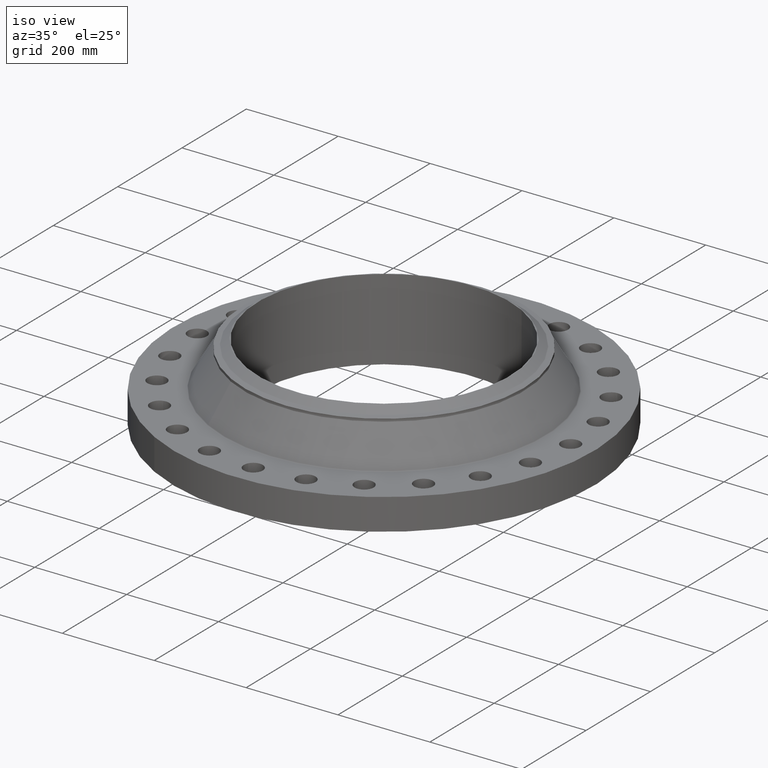
[diagram: clean part render]
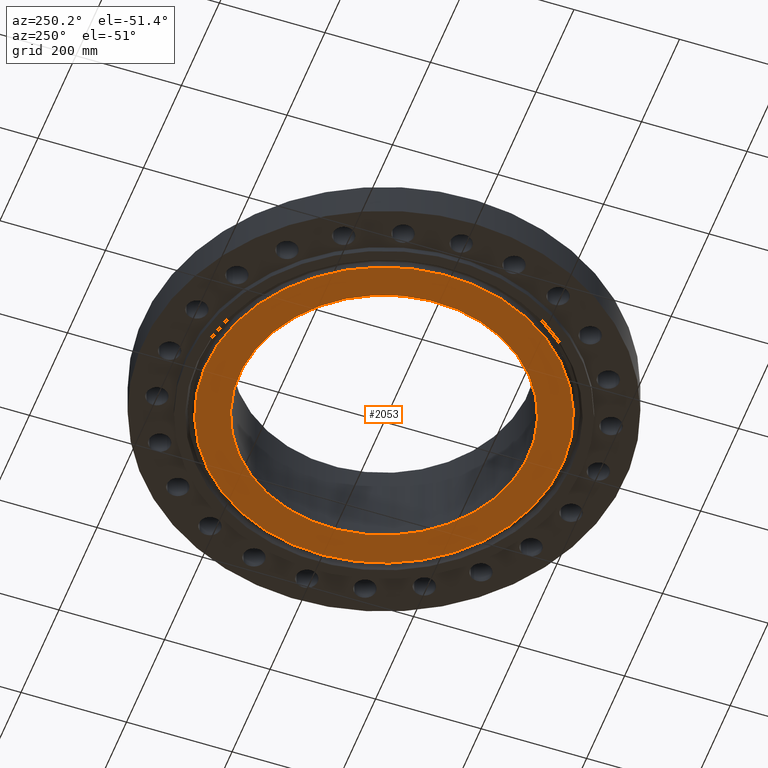
[diagram: tour spotlight — one face highlighted and labeled with its STEP entity id]
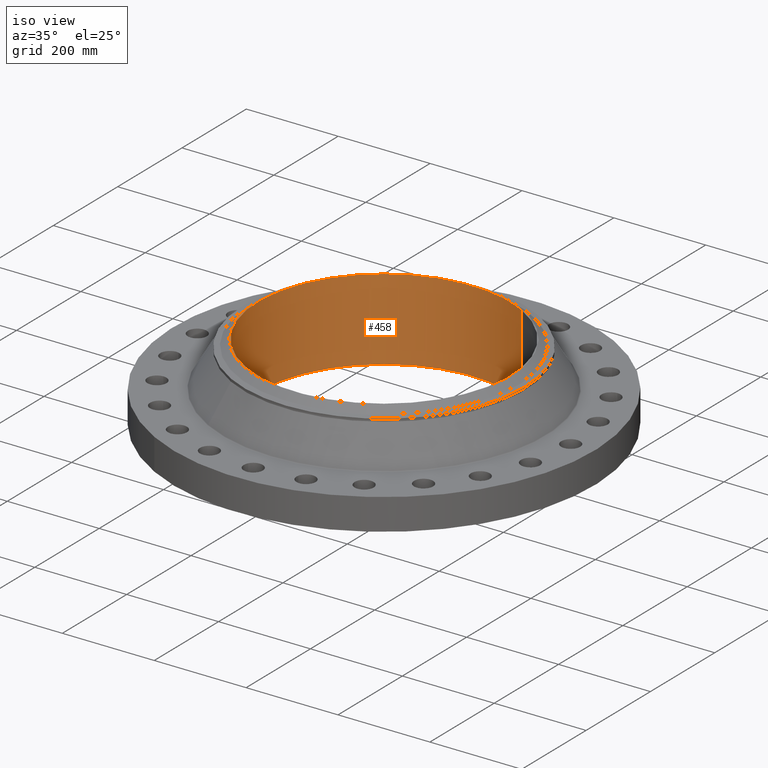
[diagram: tour spotlight — one face highlighted and labeled with its STEP entity id]
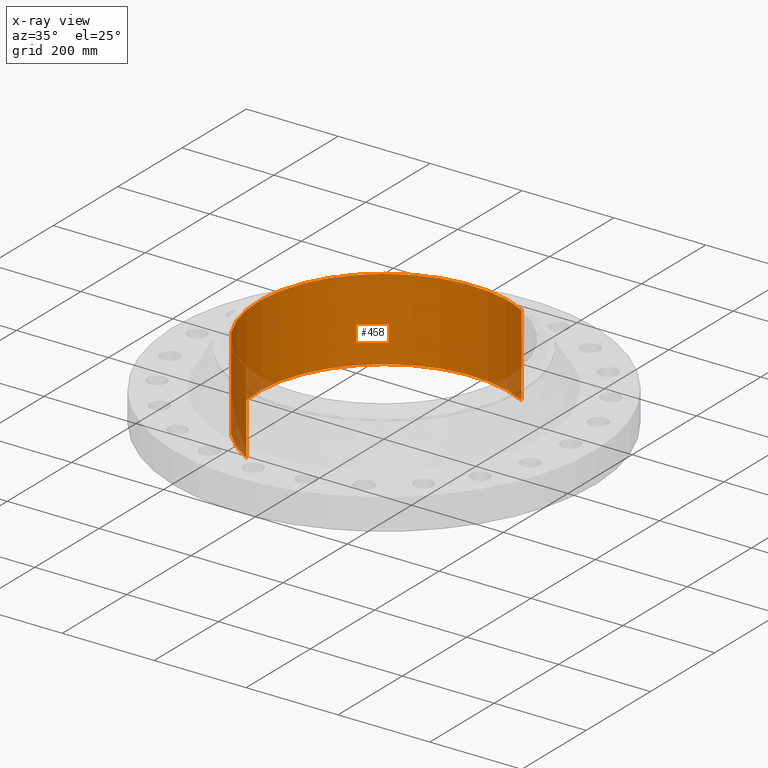
[diagram: x-ray of the same camera — body ghosted, this tour face saturated]
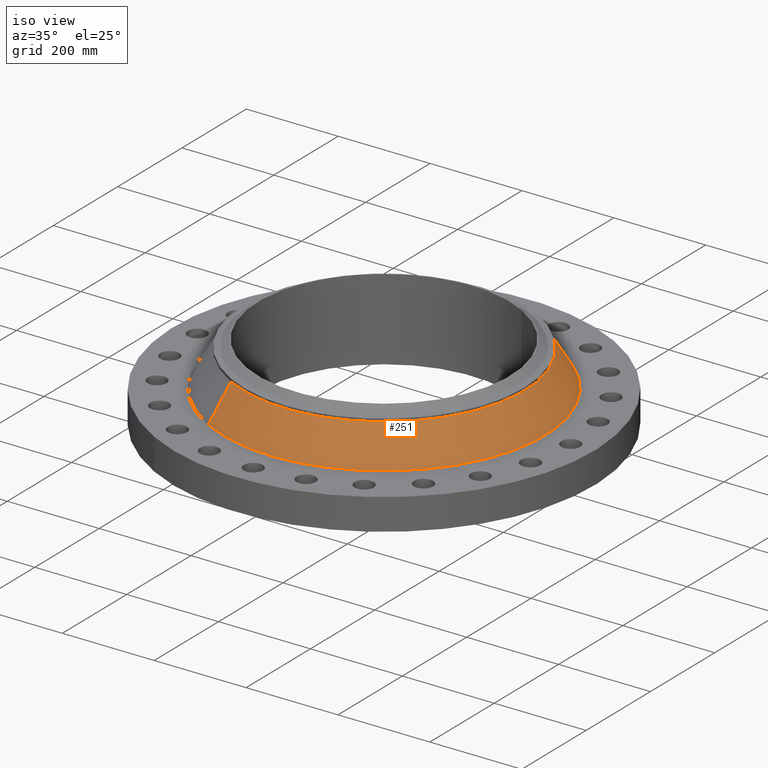
[diagram: tour spotlight — one face highlighted and labeled with its STEP entity id]
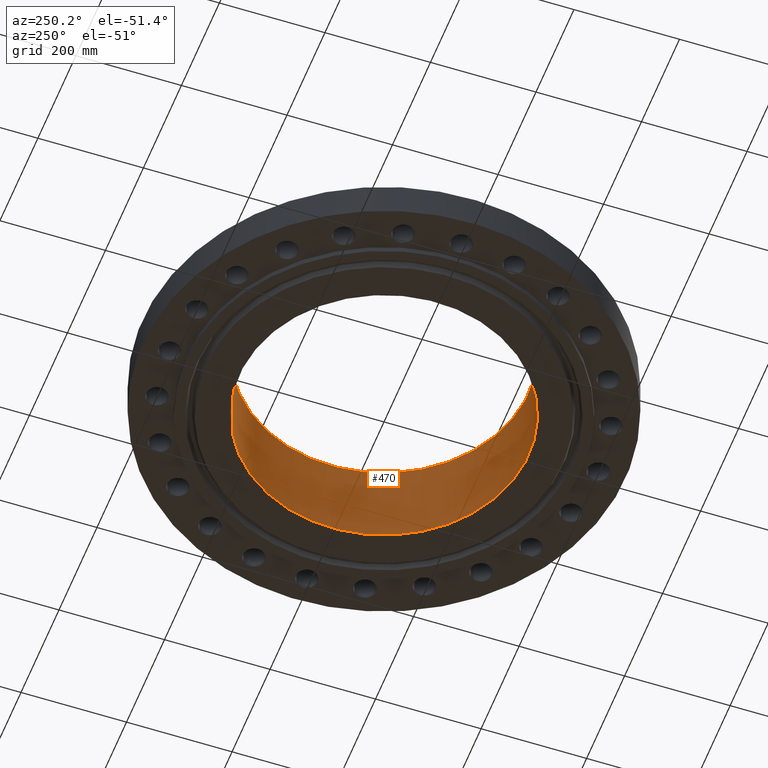
[diagram: tour spotlight — one face highlighted and labeled with its STEP entity id]
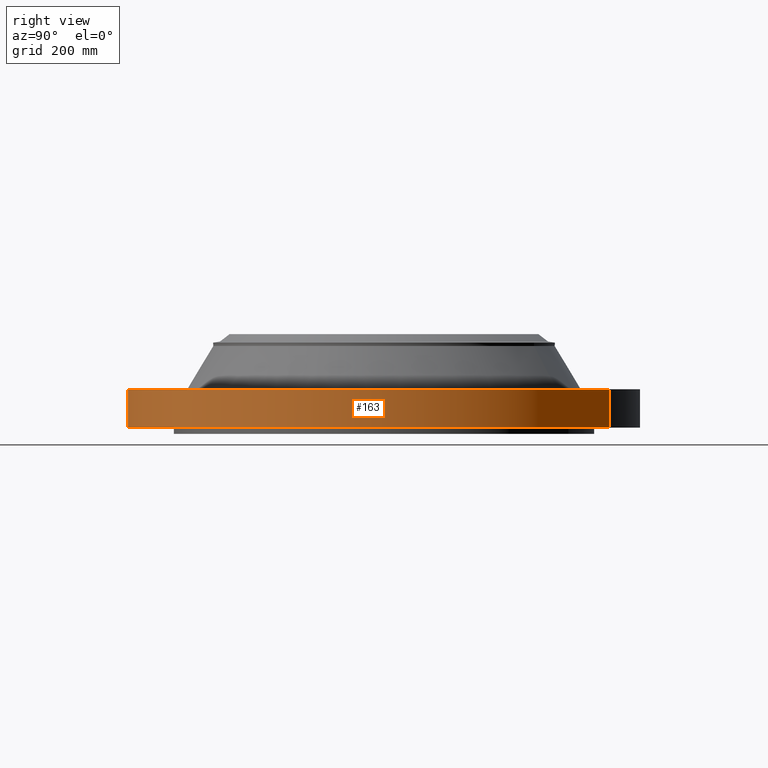
[diagram: tour spotlight — one face highlighted and labeled with its STEP entity id]
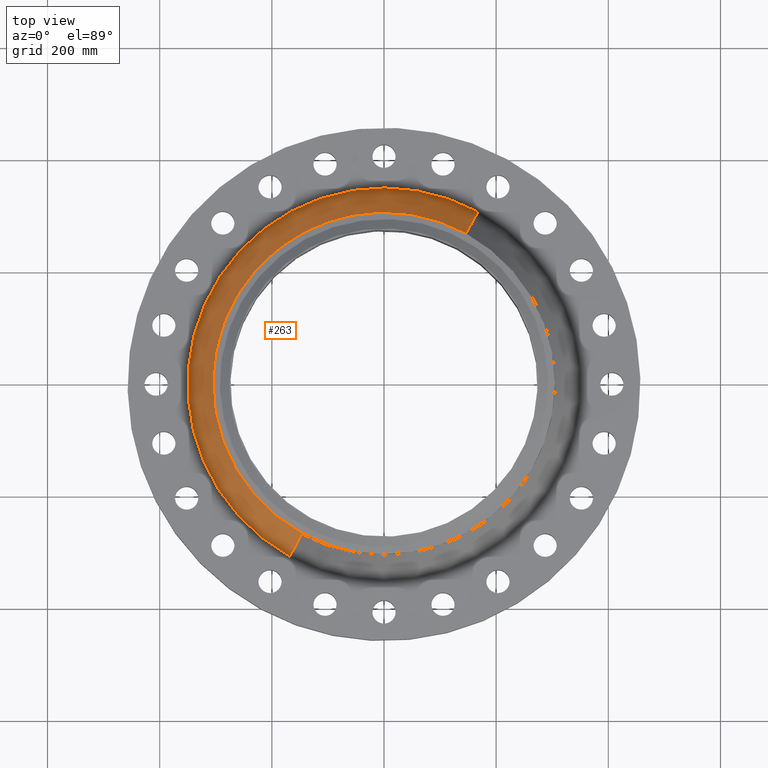
[diagram: tour spotlight — one face highlighted and labeled with its STEP entity id]
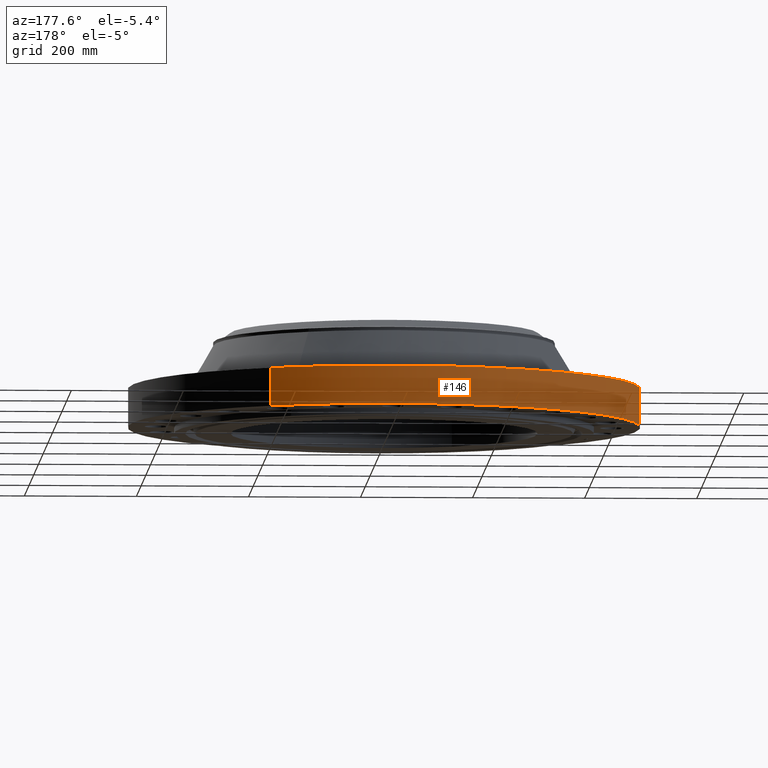
[diagram: tour spotlight — one face highlighted and labeled with its STEP entity id]
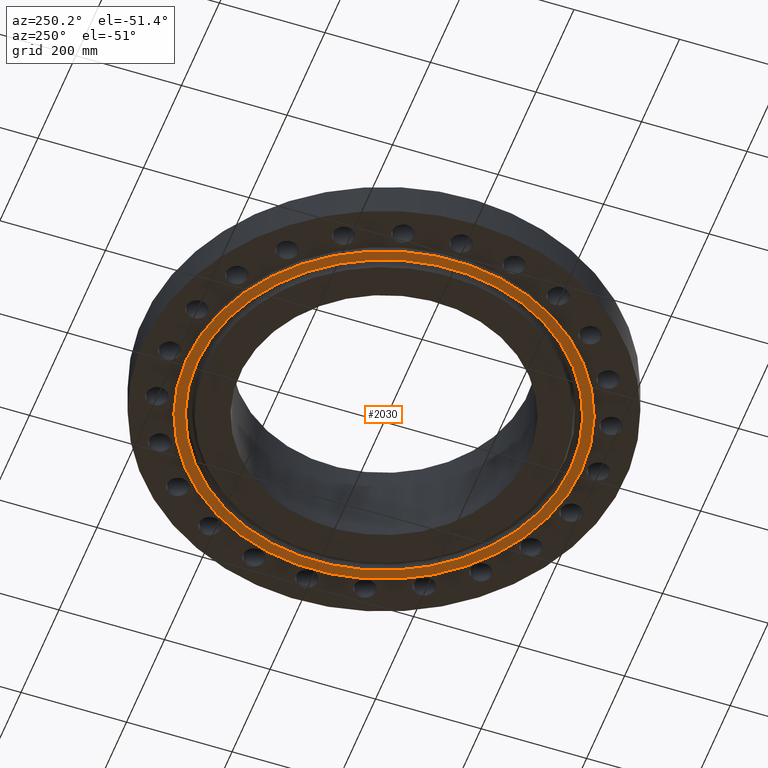
[diagram: tour spotlight — one face highlighted and labeled with its STEP entity id]
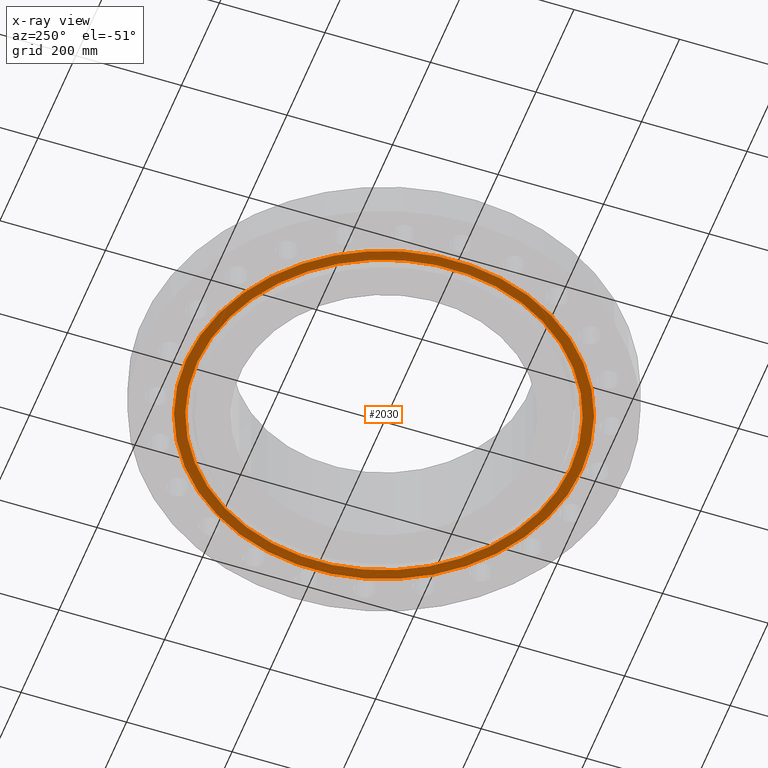
[diagram: x-ray of the same camera — body ghosted, this tour face saturated]
A machine part: a face-by-face anatomy tour. The part has 465 B-rep faces; the first image is the clean iso view, then the 8 largest visible faces are spotlighted one at a time (largest first), each with its STEP entity span.

Face 1 — auxiliary view, entity #2053. In plain terms, the highlighted planar face has unit normal (0, 0, -1).
Definition (entity closure, byte-faithful):
#442=AXIS2_PLACEMENT_3D('Circle Axis2P3D',#440,#441,$) ;
#461=AXIS2_PLACEMENT_3D('Circle Axis2P3D',#459,#460,$) ;
#2006=AXIS2_PLACEMENT_3D('Plane Axis2P3D',#2003,#2004,#2005) ;
#2033=AXIS2_PLACEMENT_3D('Circle Axis2P3D',#2031,#2032,$) ;
#2042=AXIS2_PLACEMENT_3D('Circle Axis2P3D',#2040,#2041,$) ;
#437=CARTESIAN_POINT('Vertex',(-5.16868673171,-9.46121759978,-0.438000000002)) ;
#440=CARTESIAN_POINT('Axis2P3D Location',(0.,0.,-0.438000000002)) ;
#444=CARTESIAN_POINT('Vertex',(5.16868673171,9.46121759978,-0.438000000002)) ;
#459=CARTESIAN_POINT('Axis2P3D Location',(0.,0.,-0.438000000002)) ;
#2003=CARTESIAN_POINT('Axis2P3D Location',(0.,10.781,-0.438000000002)) ;
#2031=CARTESIAN_POINT('Axis2P3D Location',(3.35689481461E-015,-2.23792987641E-015,-0.438000000002)) ;
#2035=CARTESIAN_POINT('Vertex',(-6.37492138685,11.6692153255,-0.438000000002)) ;
#2037=CARTESIAN_POINT('Vertex',(6.37492138685,-11.6692153255,-0.438000000002)) ;
#2040=CARTESIAN_POINT('Axis2P3D Location',(-3.35689481461E-015,2.23792987641E-015,-0.438000000002)) ;
#441=DIRECTION('Axis2P3D Direction',(0.,0.,-0.0393700787402)) ;
#460=DIRECTION('Axis2P3D Direction',(0.,0.,-0.0393700787402)) ;
#2004=DIRECTION('Axis2P3D Direction',(0.,0.,-0.0393700787402)) ;
#2005=DIRECTION('Axis2P3D XDirection',(0.0393700787402,0.,0.)) ;
#2032=DIRECTION('Axis2P3D Direction',(0.,0.,-0.0393700787402)) ;
#2041=DIRECTION('Axis2P3D Direction',(0.,0.,-0.0393700787402)) ;
#2046=ORIENTED_EDGE('',*,*,#2039,.T.) ;
#2047=ORIENTED_EDGE('',*,*,#2044,.T.) ;
#2050=ORIENTED_EDGE('',*,*,#463,.F.) ;
#2051=ORIENTED_EDGE('',*,*,#446,.F.) ;
#2052=FACE_BOUND('',#2049,.T.) ;
#2053=ADVANCED_FACE('PartBody',(#2048,#2052),#2007,.T.) ;
#443=CIRCLE('generated circle',#442,10.781) ;
#462=CIRCLE('generated circle',#461,10.781) ;
#2034=CIRCLE('generated circle',#2033,13.2970000001) ;
#2043=CIRCLE('generated circle',#2042,13.2970000001) ;
#446=EDGE_CURVE('',#438,#445,#443,.T.) ;
#463=EDGE_CURVE('',#445,#438,#462,.T.) ;
#2039=EDGE_CURVE('',#2036,#2038,#2034,.T.) ;
#2044=EDGE_CURVE('',#2038,#2036,#2043,.T.) ;
#2045=EDGE_LOOP('',(#2046,#2047)) ;
#2049=EDGE_LOOP('',(#2050,#2051)) ;
#2048=FACE_OUTER_BOUND('',#2045,.T.) ;
#2007=PLANE('',#2006) ;
#438=VERTEX_POINT('',#437) ;
#445=VERTEX_POINT('',#444) ;
#2036=VERTEX_POINT('',#2035) ;
#2038=VERTEX_POINT('',#2037) ;

Face 2 — iso view, entity #458. An x-ray twin of the same camera follows (body ghosted, this face saturated) — the face is partly hidden behind the body. In plain terms, the highlighted cylindrical surface (partial cylindrical patch) has radius 273.837 mm, axis along (0, 0, -1).
Definition (entity closure, byte-faithful):
#380=AXIS2_PLACEMENT_3D('Circle Axis2P3D',#378,#379,$) ;
#431=AXIS2_PLACEMENT_3D('Cylinder Axis2P3D',#428,#429,#430) ;
#442=AXIS2_PLACEMENT_3D('Circle Axis2P3D',#440,#441,$) ;
#378=CARTESIAN_POINT('Axis2P3D Location',(0.,0.,6.56000000003)) ;
#382=CARTESIAN_POINT('Vertex',(-5.16868673171,-9.46121759978,6.56000000003)) ;
#384=CARTESIAN_POINT('Vertex',(5.16868673171,9.46121759978,6.56000000003)) ;
#428=CARTESIAN_POINT('Axis2P3D Location',(0.,0.,3.06100000001)) ;
#433=CARTESIAN_POINT('Line Origine',(-5.16868673171,-9.46121759978,3.06100000001)) ;
#437=CARTESIAN_POINT('Vertex',(-5.16868673171,-9.46121759978,-0.438000000002)) ;
#440=CARTESIAN_POINT('Axis2P3D Location',(0.,0.,-0.438000000002)) ;
#444=CARTESIAN_POINT('Vertex',(5.16868673171,9.46121759978,-0.438000000002)) ;
#447=CARTESIAN_POINT('Line Origine',(5.16868673171,9.46121759978,3.06100000001)) ;
#379=DIRECTION('Axis2P3D Direction',(0.,0.,-0.0393700787402)) ;
#429=DIRECTION('Axis2P3D Direction',(0.,0.,-0.0393700787402)) ;
#430=DIRECTION('Axis2P3D XDirection',(0.0188750212049,0.0345504945626,0.)) ;
#434=DIRECTION('Vector Direction',(0.,0.,-0.0393700787402)) ;
#441=DIRECTION('Axis2P3D Direction',(0.,0.,-0.0393700787402)) ;
#448=DIRECTION('Vector Direction',(0.,0.,-0.0393700787402)) ;
#435=VECTOR('Line Direction',#434,0.0393700787402) ;
#449=VECTOR('Line Direction',#448,0.0393700787402) ;
#453=ORIENTED_EDGE('',*,*,#386,.F.) ;
#454=ORIENTED_EDGE('',*,*,#439,.T.) ;
#455=ORIENTED_EDGE('',*,*,#446,.T.) ;
#456=ORIENTED_EDGE('',*,*,#451,.F.) ;
#458=ADVANCED_FACE('PartBody',(#457),#432,.F.) ;
#381=CIRCLE('generated circle',#380,10.781) ;
#443=CIRCLE('generated circle',#442,10.781) ;
#432=CYLINDRICAL_SURFACE('generated cylinder',#431,10.781) ;
#386=EDGE_CURVE('',#383,#385,#381,.T.) ;
#439=EDGE_CURVE('',#383,#438,#436,.T.) ;
#446=EDGE_CURVE('',#438,#445,#443,.T.) ;
#451=EDGE_CURVE('',#385,#445,#450,.T.) ;
#452=EDGE_LOOP('',(#453,#454,#455,#456)) ;
#457=FACE_OUTER_BOUND('',#452,.T.) ;
#436=LINE('Line',#433,#435) ;
#450=LINE('Line',#447,#449) ;
#383=VERTEX_POINT('',#382) ;
#385=VERTEX_POINT('',#384) ;
#438=VERTEX_POINT('',#437) ;
#445=VERTEX_POINT('',#444) ;

Face 3 — iso view, entity #251. In plain terms, the highlighted conical surface has half-angle 30.793 deg.
Definition (entity closure, byte-faithful):
#187=AXIS2_PLACEMENT_3D('Circle Axis2P3D',#185,#186,$) ;
#224=AXIS2_PLACEMENT_3D('Cone Axis2P3D',#221,#222,#223) ;
#235=AXIS2_PLACEMENT_3D('Circle Axis2P3D',#233,#234,$) ;
#182=CARTESIAN_POINT('Vertex',(6.60413308278,12.0887845206,2.74856779196)) ;
#185=CARTESIAN_POINT('Axis2P3D Location',(0.,0.,2.74856779196)) ;
#189=CARTESIAN_POINT('Vertex',(-6.60413308278,-12.0887845206,2.74856779196)) ;
#221=CARTESIAN_POINT('Axis2P3D Location',(0.,0.,5.72716976636)) ;
#226=CARTESIAN_POINT('Line Origine',(6.17861977303,11.3098876317,4.23786877916)) ;
#230=CARTESIAN_POINT('Vertex',(5.75310646327,10.5309907427,5.72716976636)) ;
#233=CARTESIAN_POINT('Axis2P3D Location',(0.,0.,5.72716976636)) ;
#237=CARTESIAN_POINT('Vertex',(-5.75310646327,-10.5309907427,5.72716976636)) ;
#240=CARTESIAN_POINT('Line Origine',(-6.17861977303,-11.3098876317,4.23786877916)) ;
#186=DIRECTION('Axis2P3D Direction',(0.,0.,-0.0393700787402)) ;
#222=DIRECTION('Axis2P3D Direction',(0.,0.,-0.0393700787402)) ;
#223=DIRECTION('Axis2P3D XDirection',(-0.0188750212049,-0.0345504945626,0.)) ;
#227=DIRECTION('Vector Direction',(0.00966278524701,0.0176876097522,-0.0338198483517)) ;
#234=DIRECTION('Axis2P3D Direction',(0.,0.,-0.0393700787402)) ;
#241=DIRECTION('Vector Direction',(-0.00966278524701,-0.0176876097522,-0.0338198483517)) ;
#228=VECTOR('Line Direction',#227,0.0393700787402) ;
#242=VECTOR('Line Direction',#241,0.0393700787402) ;
#246=ORIENTED_EDGE('',*,*,#191,.F.) ;
#247=ORIENTED_EDGE('',*,*,#232,.T.) ;
#248=ORIENTED_EDGE('',*,*,#239,.T.) ;
#249=ORIENTED_EDGE('',*,*,#244,.F.) ;
#251=ADVANCED_FACE('PartBody',(#250),#225,.T.) ;
#188=CIRCLE('generated circle',#187,13.7750965499) ;
#236=CIRCLE('generated circle',#235,12.) ;
#225=CONICAL_SURFACE('Cone',#224,12.,0.537435916281) ;
#191=EDGE_CURVE('',#183,#190,#188,.T.) ;
#232=EDGE_CURVE('',#183,#231,#229,.F.) ;
#239=EDGE_CURVE('',#231,#238,#236,.T.) ;
#244=EDGE_CURVE('',#190,#238,#243,.F.) ;
#245=EDGE_LOOP('',(#246,#247,#248,#249)) ;
#250=FACE_OUTER_BOUND('',#245,.T.) ;
#229=LINE('Line',#226,#228) ;
#243=LINE('Line',#240,#242) ;
#183=VERTEX_POINT('',#182) ;
#190=VERTEX_POINT('',#189) ;
#231=VERTEX_POINT('',#230) ;
#238=VERTEX_POINT('',#237) ;

Face 4 — auxiliary view, entity #470. In plain terms, the highlighted cylindrical surface (partial cylindrical patch) has radius 273.837 mm, axis along (0, 0, -1).
Definition (entity closure, byte-faithful):
#389=AXIS2_PLACEMENT_3D('Circle Axis2P3D',#387,#388,$) ;
#431=AXIS2_PLACEMENT_3D('Cylinder Axis2P3D',#428,#429,#430) ;
#461=AXIS2_PLACEMENT_3D('Circle Axis2P3D',#459,#460,$) ;
#382=CARTESIAN_POINT('Vertex',(-5.16868673171,-9.46121759978,6.56000000003)) ;
#384=CARTESIAN_POINT('Vertex',(5.16868673171,9.46121759978,6.56000000003)) ;
#387=CARTESIAN_POINT('Axis2P3D Location',(0.,0.,6.56000000003)) ;
#428=CARTESIAN_POINT('Axis2P3D Location',(0.,0.,3.06100000001)) ;
#433=CARTESIAN_POINT('Line Origine',(-5.16868673171,-9.46121759978,3.06100000001)) ;
#437=CARTESIAN_POINT('Vertex',(-5.16868673171,-9.46121759978,-0.438000000002)) ;
#444=CARTESIAN_POINT('Vertex',(5.16868673171,9.46121759978,-0.438000000002)) ;
#447=CARTESIAN_POINT('Line Origine',(5.16868673171,9.46121759978,3.06100000001)) ;
#459=CARTESIAN_POINT('Axis2P3D Location',(0.,0.,-0.438000000002)) ;
#388=DIRECTION('Axis2P3D Direction',(0.,0.,-0.0393700787402)) ;
#429=DIRECTION('Axis2P3D Direction',(0.,0.,-0.0393700787402)) ;
#430=DIRECTION('Axis2P3D XDirection',(0.0188750212049,0.0345504945626,0.)) ;
#434=DIRECTION('Vector Direction',(0.,0.,-0.0393700787402)) ;
#448=DIRECTION('Vector Direction',(0.,0.,-0.0393700787402)) ;
#460=DIRECTION('Axis2P3D Direction',(0.,0.,-0.0393700787402)) ;
#435=VECTOR('Line Direction',#434,0.0393700787402) ;
#449=VECTOR('Line Direction',#448,0.0393700787402) ;
#465=ORIENTED_EDGE('',*,*,#391,.F.) ;
#466=ORIENTED_EDGE('',*,*,#451,.T.) ;
#467=ORIENTED_EDGE('',*,*,#463,.T.) ;
#468=ORIENTED_EDGE('',*,*,#439,.F.) ;
#470=ADVANCED_FACE('PartBody',(#469),#432,.F.) ;
#390=CIRCLE('generated circle',#389,10.781) ;
#462=CIRCLE('generated circle',#461,10.781) ;
#432=CYLINDRICAL_SURFACE('generated cylinder',#431,10.781) ;
#391=EDGE_CURVE('',#385,#383,#390,.T.) ;
#439=EDGE_CURVE('',#383,#438,#436,.T.) ;
#451=EDGE_CURVE('',#385,#445,#450,.T.) ;
#463=EDGE_CURVE('',#445,#438,#462,.T.) ;
#464=EDGE_LOOP('',(#465,#466,#467,#468)) ;
#469=FACE_OUTER_BOUND('',#464,.T.) ;
#436=LINE('Line',#433,#435) ;
#450=LINE('Line',#447,#449) ;
#383=VERTEX_POINT('',#382) ;
#385=VERTEX_POINT('',#384) ;
#438=VERTEX_POINT('',#437) ;
#445=VERTEX_POINT('',#444) ;

Face 5 — right view, entity #163. In plain terms, the highlighted cylindrical surface (partial cylindrical patch) has radius 457.2 mm, axis along (0, 0, -1).
Definition (entity closure, byte-faithful):
#110=AXIS2_PLACEMENT_3D('Cylinder Axis2P3D',#107,#108,#109) ;
#149=AXIS2_PLACEMENT_3D('Circle Axis2P3D',#147,#148,$) ;
#154=AXIS2_PLACEMENT_3D('Circle Axis2P3D',#152,#153,$) ;
#107=CARTESIAN_POINT('Axis2P3D Location',(0.,0.,3.06100000001)) ;
#116=CARTESIAN_POINT('Vertex',(-8.62965969491,-15.7964861141,2.23792987641E-015)) ;
#118=CARTESIAN_POINT('Vertex',(8.62965969491,15.7964861141,2.23792987641E-015)) ;
#121=CARTESIAN_POINT('Line Origine',(-8.62965969491,-15.7964861141,1.34500000001)) ;
#125=CARTESIAN_POINT('Vertex',(-8.62965969491,-15.7964861141,2.69000000001)) ;
#132=CARTESIAN_POINT('Vertex',(8.62965969491,15.7964861141,2.69000000001)) ;
#135=CARTESIAN_POINT('Line Origine',(8.62965969491,15.7964861141,1.34500000001)) ;
#147=CARTESIAN_POINT('Axis2P3D Location',(0.,0.,2.23792987641E-015)) ;
#152=CARTESIAN_POINT('Axis2P3D Location',(0.,0.,2.69000000001)) ;
#108=DIRECTION('Axis2P3D Direction',(0.,0.,-0.0393700787402)) ;
#109=DIRECTION('Axis2P3D XDirection',(0.0188750212049,0.0345504945626,0.)) ;
#122=DIRECTION('Vector Direction',(0.,0.,-0.0393700787402)) ;
#136=DIRECTION('Vector Direction',(0.,0.,-0.0393700787402)) ;
#148=DIRECTION('Axis2P3D Direction',(0.,0.,-0.0393700787402)) ;
#153=DIRECTION('Axis2P3D Direction',(0.,0.,-0.0393700787402)) ;
#123=VECTOR('Line Direction',#122,0.0393700787402) ;
#137=VECTOR('Line Direction',#136,0.0393700787402) ;
#158=ORIENTED_EDGE('',*,*,#151,.F.) ;
#159=ORIENTED_EDGE('',*,*,#139,.T.) ;
#160=ORIENTED_EDGE('',*,*,#156,.T.) ;
#161=ORIENTED_EDGE('',*,*,#127,.F.) ;
#163=ADVANCED_FACE('PartBody',(#162),#111,.T.) ;
#150=CIRCLE('generated circle',#149,18.0000000001) ;
#155=CIRCLE('generated circle',#154,18.0000000001) ;
#111=CYLINDRICAL_SURFACE('generated cylinder',#110,18.0000000001) ;
#127=EDGE_CURVE('',#117,#126,#124,.F.) ;
#139=EDGE_CURVE('',#119,#133,#138,.F.) ;
#151=EDGE_CURVE('',#119,#117,#150,.T.) ;
#156=EDGE_CURVE('',#133,#126,#155,.T.) ;
#157=EDGE_LOOP('',(#158,#159,#160,#161)) ;
#162=FACE_OUTER_BOUND('',#157,.T.) ;
#124=LINE('Line',#121,#123) ;
#138=LINE('Line',#135,#137) ;
#117=VERTEX_POINT('',#116) ;
#119=VERTEX_POINT('',#118) ;
#126=VERTEX_POINT('',#125) ;
#133=VERTEX_POINT('',#132) ;

Face 6 — top view, entity #263. In plain terms, the highlighted conical surface has half-angle 30.793 deg.
Definition (entity closure, byte-faithful):
#211=AXIS2_PLACEMENT_3D('Circle Axis2P3D',#209,#210,$) ;
#224=AXIS2_PLACEMENT_3D('Cone Axis2P3D',#221,#222,#223) ;
#254=AXIS2_PLACEMENT_3D('Circle Axis2P3D',#252,#253,$) ;
#182=CARTESIAN_POINT('Vertex',(6.60413308278,12.0887845206,2.74856779196)) ;
#189=CARTESIAN_POINT('Vertex',(-6.60413308278,-12.0887845206,2.74856779196)) ;
#209=CARTESIAN_POINT('Axis2P3D Location',(0.,0.,2.74856779196)) ;
#221=CARTESIAN_POINT('Axis2P3D Location',(0.,0.,5.72716976636)) ;
#226=CARTESIAN_POINT('Line Origine',(6.17861977303,11.3098876317,4.23786877916)) ;
#230=CARTESIAN_POINT('Vertex',(5.75310646327,10.5309907427,5.72716976636)) ;
#237=CARTESIAN_POINT('Vertex',(-5.75310646327,-10.5309907427,5.72716976636)) ;
#240=CARTESIAN_POINT('Line Origine',(-6.17861977303,-11.3098876317,4.23786877916)) ;
#252=CARTESIAN_POINT('Axis2P3D Location',(0.,0.,5.72716976636)) ;
#210=DIRECTION('Axis2P3D Direction',(0.,0.,-0.0393700787402)) ;
#222=DIRECTION('Axis2P3D Direction',(0.,0.,-0.0393700787402)) ;
#223=DIRECTION('Axis2P3D XDirection',(-0.0188750212049,-0.0345504945626,0.)) ;
#227=DIRECTION('Vector Direction',(0.00966278524701,0.0176876097522,-0.0338198483517)) ;
#241=DIRECTION('Vector Direction',(-0.00966278524701,-0.0176876097522,-0.0338198483517)) ;
#253=DIRECTION('Axis2P3D Direction',(0.,0.,-0.0393700787402)) ;
#228=VECTOR('Line Direction',#227,0.0393700787402) ;
#242=VECTOR('Line Direction',#241,0.0393700787402) ;
#258=ORIENTED_EDGE('',*,*,#213,.F.) ;
#259=ORIENTED_EDGE('',*,*,#244,.T.) ;
#260=ORIENTED_EDGE('',*,*,#256,.T.) ;
#261=ORIENTED_EDGE('',*,*,#232,.F.) ;
#263=ADVANCED_FACE('PartBody',(#262),#225,.T.) ;
#212=CIRCLE('generated circle',#211,13.7750965499) ;
#255=CIRCLE('generated circle',#254,12.) ;
#225=CONICAL_SURFACE('Cone',#224,12.,0.537435916281) ;
#213=EDGE_CURVE('',#190,#183,#212,.T.) ;
#232=EDGE_CURVE('',#183,#231,#229,.F.) ;
#244=EDGE_CURVE('',#190,#238,#243,.F.) ;
#256=EDGE_CURVE('',#238,#231,#255,.T.) ;
#257=EDGE_LOOP('',(#258,#259,#260,#261)) ;
#262=FACE_OUTER_BOUND('',#257,.T.) ;
#229=LINE('Line',#226,#228) ;
#243=LINE('Line',#240,#242) ;
#183=VERTEX_POINT('',#182) ;
#190=VERTEX_POINT('',#189) ;
#231=VERTEX_POINT('',#230) ;
#238=VERTEX_POINT('',#237) ;

Face 7 — auxiliary view, entity #146. In plain terms, the highlighted cylindrical surface (partial cylindrical patch) has radius 457.2 mm, axis along (0, 0, -1).
Definition (entity closure, byte-faithful):
#110=AXIS2_PLACEMENT_3D('Cylinder Axis2P3D',#107,#108,#109) ;
#114=AXIS2_PLACEMENT_3D('Circle Axis2P3D',#112,#113,$) ;
#130=AXIS2_PLACEMENT_3D('Circle Axis2P3D',#128,#129,$) ;
#107=CARTESIAN_POINT('Axis2P3D Location',(0.,0.,3.06100000001)) ;
#112=CARTESIAN_POINT('Axis2P3D Location',(0.,0.,2.23792987641E-015)) ;
#116=CARTESIAN_POINT('Vertex',(-8.62965969491,-15.7964861141,2.23792987641E-015)) ;
#118=CARTESIAN_POINT('Vertex',(8.62965969491,15.7964861141,2.23792987641E-015)) ;
#121=CARTESIAN_POINT('Line Origine',(-8.62965969491,-15.7964861141,1.34500000001)) ;
#125=CARTESIAN_POINT('Vertex',(-8.62965969491,-15.7964861141,2.69000000001)) ;
#128=CARTESIAN_POINT('Axis2P3D Location',(0.,0.,2.69000000001)) ;
#132=CARTESIAN_POINT('Vertex',(8.62965969491,15.7964861141,2.69000000001)) ;
#135=CARTESIAN_POINT('Line Origine',(8.62965969491,15.7964861141,1.34500000001)) ;
#108=DIRECTION('Axis2P3D Direction',(0.,0.,-0.0393700787402)) ;
#109=DIRECTION('Axis2P3D XDirection',(0.0188750212049,0.0345504945626,0.)) ;
#113=DIRECTION('Axis2P3D Direction',(0.,0.,-0.0393700787402)) ;
#122=DIRECTION('Vector Direction',(0.,0.,-0.0393700787402)) ;
#129=DIRECTION('Axis2P3D Direction',(0.,0.,-0.0393700787402)) ;
#136=DIRECTION('Vector Direction',(0.,0.,-0.0393700787402)) ;
#123=VECTOR('Line Direction',#122,0.0393700787402) ;
#137=VECTOR('Line Direction',#136,0.0393700787402) ;
#141=ORIENTED_EDGE('',*,*,#120,.F.) ;
#142=ORIENTED_EDGE('',*,*,#127,.T.) ;
#143=ORIENTED_EDGE('',*,*,#134,.T.) ;
#144=ORIENTED_EDGE('',*,*,#139,.F.) ;
#146=ADVANCED_FACE('PartBody',(#145),#111,.T.) ;
#115=CIRCLE('generated circle',#114,18.0000000001) ;
#131=CIRCLE('generated circle',#130,18.0000000001) ;
#111=CYLINDRICAL_SURFACE('generated cylinder',#110,18.0000000001) ;
#120=EDGE_CURVE('',#117,#119,#115,.T.) ;
#127=EDGE_CURVE('',#117,#126,#124,.F.) ;
#134=EDGE_CURVE('',#126,#133,#131,.T.) ;
#139=EDGE_CURVE('',#119,#133,#138,.F.) ;
#140=EDGE_LOOP('',(#141,#142,#143,#144)) ;
#145=FACE_OUTER_BOUND('',#140,.T.) ;
#124=LINE('Line',#121,#123) ;
#138=LINE('Line',#135,#137) ;
#117=VERTEX_POINT('',#116) ;
#119=VERTEX_POINT('',#118) ;
#126=VERTEX_POINT('',#125) ;
#133=VERTEX_POINT('',#132) ;

Face 8 — auxiliary view, entity #2030. An x-ray twin of the same camera follows (body ghosted, this face saturated) — the face is partly hidden behind the body. In plain terms, the highlighted planar face has unit normal (0, 0, -1).
Definition (entity closure, byte-faithful):
#532=AXIS2_PLACEMENT_3D('Circle Axis2P3D',#530,#531,$) ;
#567=AXIS2_PLACEMENT_3D('Circle Axis2P3D',#565,#566,$) ;
#2006=AXIS2_PLACEMENT_3D('Plane Axis2P3D',#2003,#2004,#2005) ;
#2014=AXIS2_PLACEMENT_3D('Circle Axis2P3D',#2012,#2013,$) ;
#2023=AXIS2_PLACEMENT_3D('Circle Axis2P3D',#2021,#2022,$) ;
#530=CARTESIAN_POINT('Axis2P3D Location',(0.,0.,-0.438000000002)) ;
#534=CARTESIAN_POINT('Vertex',(-7.07152669444,-12.9443427879,-0.438000000002)) ;
#536=CARTESIAN_POINT('Vertex',(7.07152669444,12.9443427879,-0.438000000002)) ;
#565=CARTESIAN_POINT('Axis2P3D Location',(0.,0.,-0.438000000002)) ;
#2003=CARTESIAN_POINT('Axis2P3D Location',(0.,10.781,-0.438000000002)) ;
#2012=CARTESIAN_POINT('Axis2P3D Location',(0.,-4.47585975282E-015,-0.438000000002)) ;
#2016=CARTESIAN_POINT('Vertex',(6.68942454017,-12.2449094861,-0.438000000002)) ;
#2018=CARTESIAN_POINT('Vertex',(-6.68942454017,12.2449094861,-0.438000000002)) ;
#2021=CARTESIAN_POINT('Axis2P3D Location',(1.1189649382E-015,2.23792987641E-015,-0.438000000002)) ;
#531=DIRECTION('Axis2P3D Direction',(0.,0.,-0.0393700787402)) ;
#566=DIRECTION('Axis2P3D Direction',(0.,0.,-0.0393700787402)) ;
#2004=DIRECTION('Axis2P3D Direction',(0.,0.,-0.0393700787402)) ;
#2005=DIRECTION('Axis2P3D XDirection',(0.0393700787402,0.,0.)) ;
#2013=DIRECTION('Axis2P3D Direction',(0.,0.,-0.0393700787402)) ;
#2022=DIRECTION('Axis2P3D Direction',(0.,0.,-0.0393700787402)) ;
#2009=ORIENTED_EDGE('',*,*,#538,.T.) ;
#2010=ORIENTED_EDGE('',*,*,#569,.T.) ;
#2027=ORIENTED_EDGE('',*,*,#2020,.F.) ;
#2028=ORIENTED_EDGE('',*,*,#2025,.F.) ;
#2029=FACE_BOUND('',#2026,.T.) ;
#2030=ADVANCED_FACE('PartBody',(#2011,#2029),#2007,.T.) ;
#533=CIRCLE('generated circle',#532,14.7500000001) ;
#568=CIRCLE('generated circle',#567,14.7500000001) ;
#2015=CIRCLE('generated circle',#2014,13.9530000001) ;
#2024=CIRCLE('generated circle',#2023,13.9530000001) ;
#538=EDGE_CURVE('',#535,#537,#533,.T.) ;
#569=EDGE_CURVE('',#537,#535,#568,.T.) ;
#2020=EDGE_CURVE('',#2017,#2019,#2015,.T.) ;
#2025=EDGE_CURVE('',#2019,#2017,#2024,.T.) ;
#2008=EDGE_LOOP('',(#2009,#2010)) ;
#2026=EDGE_LOOP('',(#2027,#2028)) ;
#2011=FACE_OUTER_BOUND('',#2008,.T.) ;
#2007=PLANE('',#2006) ;
#535=VERTEX_POINT('',#534) ;
#537=VERTEX_POINT('',#536) ;
#2017=VERTEX_POINT('',#2016) ;
#2019=VERTEX_POINT('',#2018) ;